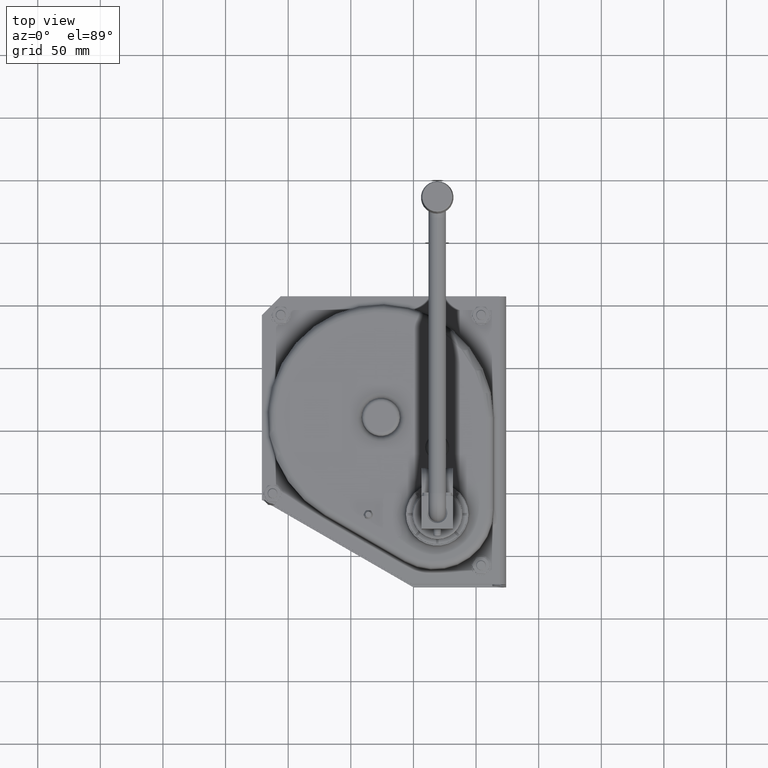
[diagram: clean part render]
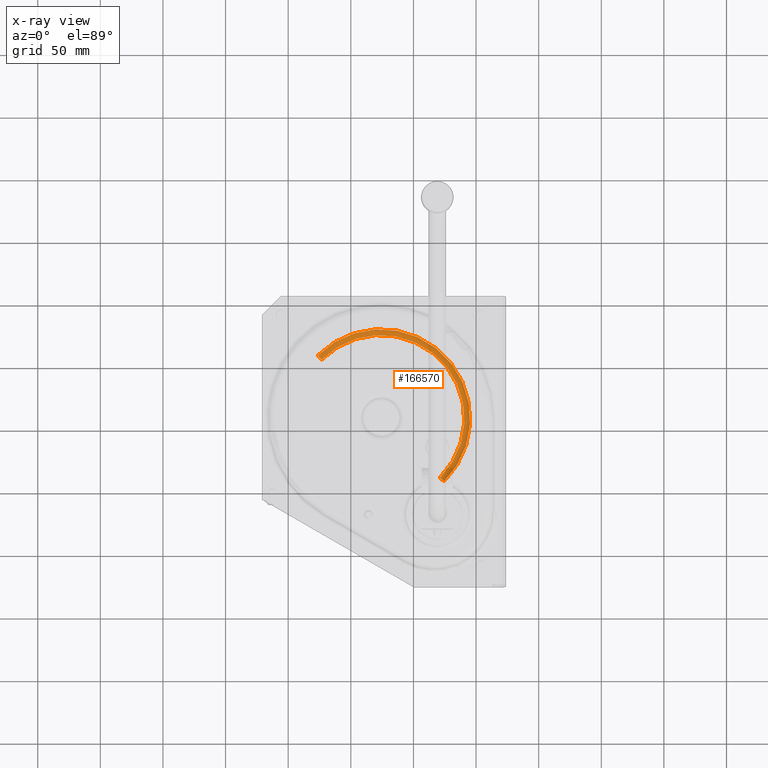
[diagram: x-ray — body ghosted, one internal face saturated and labeled with its STEP entity id]
A machine part, top view, then the same camera in x-ray: the body is ghosted and one INTERNAL B-rep face — a face not visible from any outside direction — is saturated and labeled: STEP entity #166570.
In plain terms, the highlighted toroidal blend (fillet) surface has major radius 66.6679 mm and minor (blend) radius 5 mm.
Its self-contained STEP definition (entity closure, byte-faithful):
#166080=CARTESIAN_POINT('',(-1.4210854715202E-14,134.805213467983,0.));
#166090=DIRECTION('',(0.,-1.,0.));
#166100=DIRECTION('',(-0.707106781186547,0.,-0.707106781186548));
#166110=AXIS2_PLACEMENT_3D('',#166080,#166090,#166100);
#166120=CIRCLE('',#166110,66.6678788880707);
#166130=CARTESIAN_POINT('',(-47.1413092490782,134.805213467983,
-47.1413092490782));
#166140=VERTEX_POINT('',#166130);
#166150=CARTESIAN_POINT('',(47.1413092490782,134.805213467983,
47.1413092490782));
#166160=VERTEX_POINT('',#166150);
#166190=EDGE_CURVE('',#166160,#166140,#166120,.T.);
#166240=CARTESIAN_POINT('',(-1.4210854715202E-14,139.805213467983,0.));
#166250=DIRECTION('',(0.,-1.,0.));
#166260=DIRECTION('',(-0.707106781186547,0.,-0.707106781186548));
#166270=AXIS2_PLACEMENT_3D('',#166240,#166250,#166260);
#166280=TOROIDAL_SURFACE('',#166270,66.6678788880706,5.);
#166290=CARTESIAN_POINT('',(47.1413092490782,139.805213467983,
47.1413092490782));
#166300=DIRECTION('',(-0.707106781186548,0.,0.707106781186547));
#166310=DIRECTION('',(0.,-1.,0.));
#166320=AXIS2_PLACEMENT_3D('',#166290,#166300,#166310);
#166330=CIRCLE('',#166320,5.);
#166340=CARTESIAN_POINT('',(50.3816795982821,137.805213467983,
50.3816795982822));
#166350=VERTEX_POINT('',#166340);
#166360=EDGE_CURVE('',#166160,#166350,#166330,.T.);
#166370=ORIENTED_EDGE('',*,*,#166360,.F.);
#166380=CARTESIAN_POINT('',(-1.4210854715202E-14,137.805213467983,0.));
#166390=DIRECTION('',(0.,-1.,0.));
#166400=DIRECTION('',(-0.707106781186547,0.,-0.707106781186548));
#166410=AXIS2_PLACEMENT_3D('',#166380,#166390,#166400);
#166420=CIRCLE('',#166410,71.2504545830265);
#166430=CARTESIAN_POINT('',(-50.3816795982822,137.805213467983,
-50.3816795982822));
#166440=VERTEX_POINT('',#166430);
#166450=EDGE_CURVE('',#166350,#166440,#166420,.T.);
#166460=ORIENTED_EDGE('',*,*,#166450,.F.);
#166470=CARTESIAN_POINT('',(-47.1413092490782,139.805213467983,
-47.1413092490782));
#166480=DIRECTION('',(0.707106781186548,0.,-0.707106781186547));
#166490=DIRECTION('',(0.,-1.,0.));
#166500=AXIS2_PLACEMENT_3D('',#166470,#166480,#166490);
#166510=CIRCLE('',#166500,5.);
#166520=EDGE_CURVE('',#166140,#166440,#166510,.T.);
#166530=ORIENTED_EDGE('',*,*,#166520,.T.);
#166540=ORIENTED_EDGE('',*,*,#166190,.T.);
#166550=EDGE_LOOP('',(#166540,#166530,#166460,#166370));
#166560=FACE_OUTER_BOUND('',#166550,.T.);
#166570=ADVANCED_FACE('',(#166560),#166280,.F.);